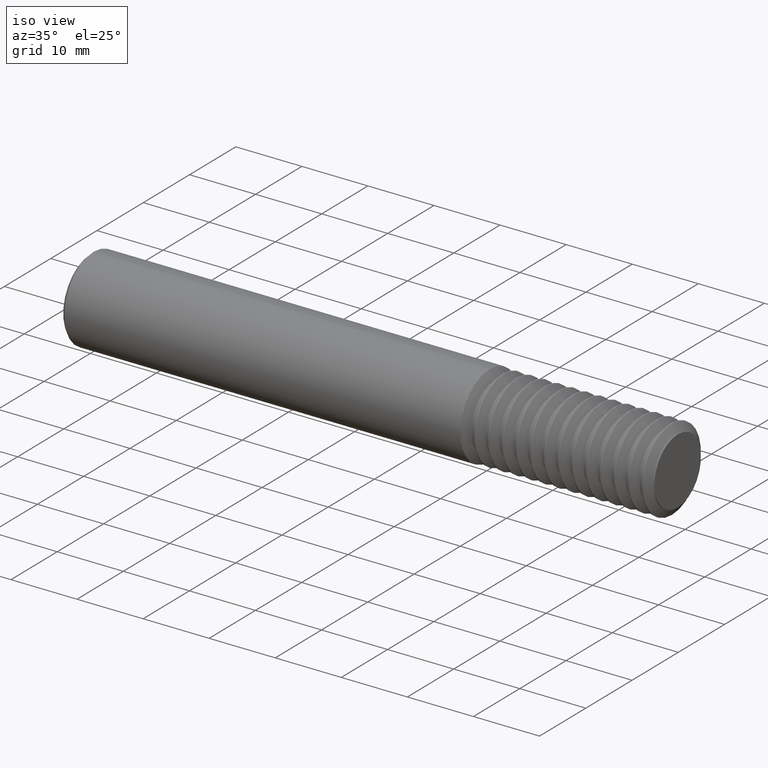
[diagram: clean part render]
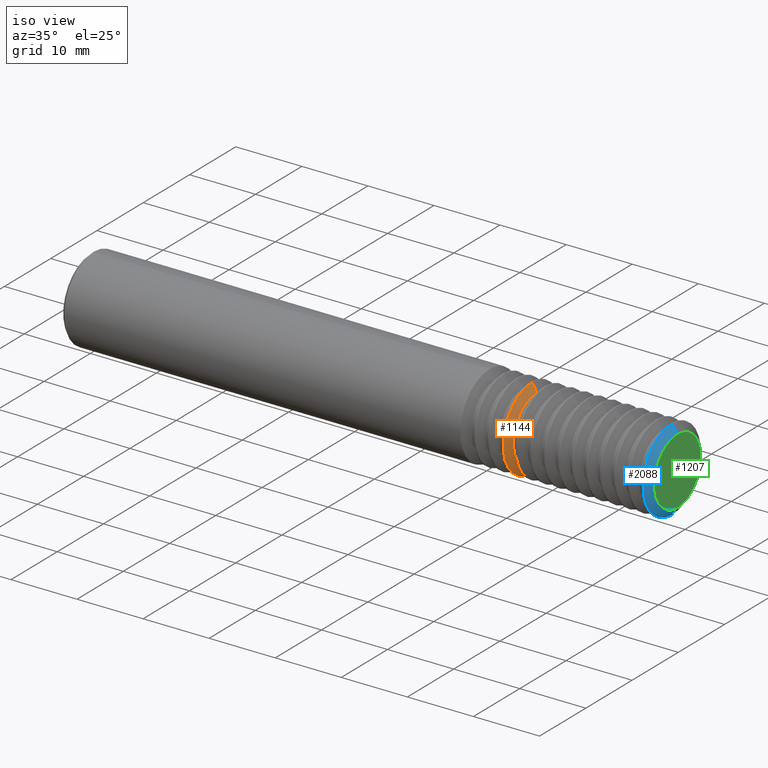
[diagram: same view with three faces highlighted in distinct colors, each labeled with its STEP entity id]
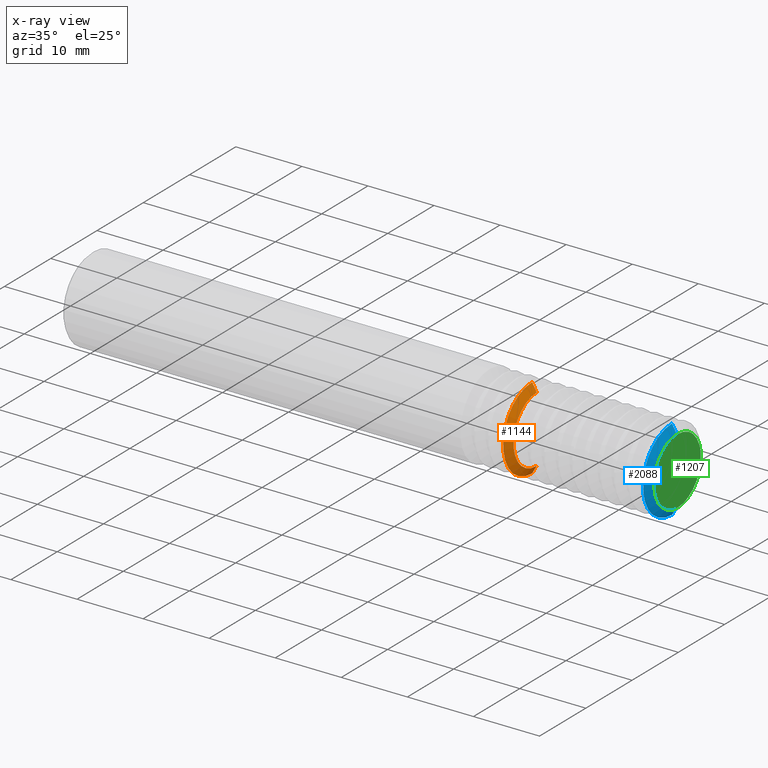
[diagram: x-ray of the same camera — body ghosted, the three highlighted faces saturated]
A machine part, iso view with three faces highlighted in distinct colors.
The next image is the same camera in x-ray (body ghosted, the three faces saturated) — at least one of them is partly hidden behind the body in this view.
Their STEP definitions:

[orange] entity #1144 — the highlighted conical surface has half-angle 60.2 deg.
#127 = CARTESIAN_POINT ( 'NONE',  ( 2.659833333333332384, 2.717894686365593704E-17, -0.1978658865981437198 ) ) ;
#288 = ORIENTED_EDGE ( 'NONE', *, *, #2534, .T. ) ;
#402 = ORIENTED_EDGE ( 'NONE', *, *, #2680, .F. ) ;
#555 = VERTEX_POINT ( 'NONE', #2595 ) ;
#576 = CARTESIAN_POINT ( 'NONE',  ( 2.632266666666666310, 0.000000000000000000, 0.000000000000000000 ) ) ;
#734 = VERTEX_POINT ( 'NONE', #2687 ) ;
#745 = ORIENTED_EDGE ( 'NONE', *, *, #1195, .T. ) ;
#1144 = ADVANCED_FACE ( 'NONE', ( #1503 ), #1455, .T. ) ;
#1187 = DIRECTION ( 'NONE',  ( -1.000000000000000000, -0.000000000000000000, -0.000000000000000000 ) ) ;
#1195 = EDGE_CURVE ( 'NONE', #555, #2588, #1818, .T. ) ;
#1234 = DIRECTION ( 'NONE',  ( 1.000000000000000000, 0.000000000000000000, 0.000000000000000000 ) ) ;
#1283 = DIRECTION ( 'NONE',  ( 0.000000000000000000, 0.000000000000000000, 1.000000000000000000 ) ) ;
#1300 = VECTOR ( 'NONE', #2517, 39.37007874015748143 ) ;
#1384 = VERTEX_POINT ( 'NONE', #127 ) ;
#1420 = EDGE_LOOP ( 'NONE', ( #402, #1889, #745, #288 ) ) ;
#1436 = AXIS2_PLACEMENT_3D ( 'NONE', #1631, #1187, #2533 ) ;
#1455 = CONICAL_SURFACE ( 'NONE', #2410, 0.2659999999999999587, 1.050688209700590070 ) ;
#1503 = FACE_OUTER_BOUND ( 'NONE', #1420, .T. ) ;
#1592 = CARTESIAN_POINT ( 'NONE',  ( 2.620812558667825254, 0.000000000000000000, 0.2659999999999999587 ) ) ;
#1631 = CARTESIAN_POINT ( 'NONE',  ( 2.659833333333332384, 0.000000000000000000, 0.000000000000000000 ) ) ;
#1777 = CARTESIAN_POINT ( 'NONE',  ( 2.620812558667825254, 0.000000000000000000, 0.000000000000000000 ) ) ;
#1818 = LINE ( 'NONE', #1592, #2880 ) ;
#1839 = CARTESIAN_POINT ( 'NONE',  ( 2.620812558667825254, 3.257560485731959097E-17, -0.2659999999999999587 ) ) ;
#1889 = ORIENTED_EDGE ( 'NONE', *, *, #2782, .T. ) ;
#1959 = AXIS2_PLACEMENT_3D ( 'NONE', #576, #1234, #2126 ) ;
#2058 = LINE ( 'NONE', #1839, #1300 ) ;
#2126 = DIRECTION ( 'NONE',  ( 0.000000000000000000, 0.000000000000000000, 1.000000000000000000 ) ) ;
#2273 = DIRECTION ( 'NONE',  ( -0.4969739610275520914, 0.000000000000000000, 0.8677654533689302951 ) ) ;
#2410 = AXIS2_PLACEMENT_3D ( 'NONE', #1777, #2423, #1283 ) ;
#2423 = DIRECTION ( 'NONE',  ( -1.000000000000000000, -0.000000000000000000, -0.000000000000000000 ) ) ;
#2438 = CIRCLE ( 'NONE', #1959, 0.2459999999999999964 ) ;
#2449 = CARTESIAN_POINT ( 'NONE',  ( 2.632266666666666310, 0.000000000000000000, 0.2459999999999999964 ) ) ;
#2517 = DIRECTION ( 'NONE',  ( -0.4969739610275520914, 1.062706184878912255E-16, -0.8677654533689302951 ) ) ;
#2533 = DIRECTION ( 'NONE',  ( 0.000000000000000000, 0.000000000000000000, 1.000000000000000000 ) ) ;
#2534 = EDGE_CURVE ( 'NONE', #2588, #734, #2438, .T. ) ;
#2588 = VERTEX_POINT ( 'NONE', #2449 ) ;
#2595 = CARTESIAN_POINT ( 'NONE',  ( 2.659833333333332384, 0.000000000000000000, 0.1978658865981437198 ) ) ;
#2677 = CIRCLE ( 'NONE', #1436, 0.1978658865981437198 ) ;
#2680 = EDGE_CURVE ( 'NONE', #1384, #734, #2058, .T. ) ;
#2687 = CARTESIAN_POINT ( 'NONE',  ( 2.632266666666666310, 3.012631125902488382E-17, -0.2459999999999999964 ) ) ;
#2782 = EDGE_CURVE ( 'NONE', #1384, #555, #2677, .T. ) ;
#2880 = VECTOR ( 'NONE', #2273, 39.37007874015748143 ) ;

[blue] entity #2088 — the highlighted conical surface has half-angle 60.2 deg.
#45 = CARTESIAN_POINT ( 'NONE',  ( 3.454145892001158291, 3.257560485731959097E-17, -0.2659999999999999587 ) ) ;
#256 = CARTESIAN_POINT ( 'NONE',  ( 3.465599999999999792, 0.000000000000000000, 0.000000000000000000 ) ) ;
#305 = VECTOR ( 'NONE', #945, 39.37007874015748143 ) ;
#314 = CARTESIAN_POINT ( 'NONE',  ( 3.465599999999999792, 0.000000000000000000, 0.2459999999999997189 ) ) ;
#636 = CARTESIAN_POINT ( 'NONE',  ( 3.493166666666665865, 2.423158246828699027E-17, -0.1978658865981437198 ) ) ;
#685 = ORIENTED_EDGE ( 'NONE', *, *, #2364, .T. ) ;
#721 = CARTESIAN_POINT ( 'NONE',  ( 3.454145892001158291, 0.000000000000000000, 0.000000000000000000 ) ) ;
#737 = DIRECTION ( 'NONE',  ( -1.000000000000000000, -0.000000000000000000, -0.000000000000000000 ) ) ;
#825 = AXIS2_PLACEMENT_3D ( 'NONE', #256, #2737, #2072 ) ;
#896 = DIRECTION ( 'NONE',  ( -1.000000000000000000, -0.000000000000000000, -0.000000000000000000 ) ) ;
#923 = CARTESIAN_POINT ( 'NONE',  ( 3.454145892001158291, 0.000000000000000000, 0.2659999999999999587 ) ) ;
#945 = DIRECTION ( 'NONE',  ( -0.4969739610275520914, 1.062706184878912255E-16, -0.8677654533689302951 ) ) ;
#949 = DIRECTION ( 'NONE',  ( -0.4969739610275520914, 0.000000000000000000, 0.8677654533689302951 ) ) ;
#1108 = CONICAL_SURFACE ( 'NONE', #2428, 0.2659999999999999587, 1.050688209700590070 ) ;
#1203 = ORIENTED_EDGE ( 'NONE', *, *, #1318, .T. ) ;
#1252 = ORIENTED_EDGE ( 'NONE', *, *, #2728, .F. ) ;
#1318 = EDGE_CURVE ( 'NONE', #2032, #1554, #2925, .T. ) ;
#1554 = VERTEX_POINT ( 'NONE', #1986 ) ;
#1620 = LINE ( 'NONE', #923, #2324 ) ;
#1708 = EDGE_LOOP ( 'NONE', ( #1252, #1203, #685, #2396 ) ) ;
#1986 = CARTESIAN_POINT ( 'NONE',  ( 3.493166666666665865, 0.000000000000000000, 0.1978658865981437198 ) ) ;
#2032 = VERTEX_POINT ( 'NONE', #636 ) ;
#2042 = LINE ( 'NONE', #45, #305 ) ;
#2072 = DIRECTION ( 'NONE',  ( 0.000000000000000000, 0.000000000000000000, 1.000000000000000000 ) ) ;
#2088 = ADVANCED_FACE ( 'NONE', ( #2747 ), #1108, .T. ) ;
#2227 = VERTEX_POINT ( 'NONE', #314 ) ;
#2245 = CARTESIAN_POINT ( 'NONE',  ( 3.493166666666665865, 0.000000000000000000, 0.000000000000000000 ) ) ;
#2324 = VECTOR ( 'NONE', #949, 39.37007874015748143 ) ;
#2364 = EDGE_CURVE ( 'NONE', #1554, #2227, #1620, .T. ) ;
#2396 = ORIENTED_EDGE ( 'NONE', *, *, #2709, .T. ) ;
#2428 = AXIS2_PLACEMENT_3D ( 'NONE', #721, #737, #2721 ) ;
#2482 = CIRCLE ( 'NONE', #825, 0.2459999999999999964 ) ;
#2558 = CARTESIAN_POINT ( 'NONE',  ( 3.465599999999999792, 3.012631125902485300E-17, -0.2459999999999997189 ) ) ;
#2702 = DIRECTION ( 'NONE',  ( 0.000000000000000000, 0.000000000000000000, 1.000000000000000000 ) ) ;
#2709 = EDGE_CURVE ( 'NONE', #2227, #2911, #2482, .T. ) ;
#2721 = DIRECTION ( 'NONE',  ( 0.000000000000000000, 0.000000000000000000, 1.000000000000000000 ) ) ;
#2728 = EDGE_CURVE ( 'NONE', #2032, #2911, #2042, .T. ) ;
#2737 = DIRECTION ( 'NONE',  ( 1.000000000000000000, 0.000000000000000000, 0.000000000000000000 ) ) ;
#2747 = FACE_OUTER_BOUND ( 'NONE', #1708, .T. ) ;
#2825 = AXIS2_PLACEMENT_3D ( 'NONE', #2245, #896, #2702 ) ;
#2911 = VERTEX_POINT ( 'NONE', #2558 ) ;
#2925 = CIRCLE ( 'NONE', #2825, 0.1978658865981437198 ) ;

[green] entity #1207 — the highlighted planar face has unit normal (-1, 0, -0).
#38 = EDGE_CURVE ( 'NONE', #1573, #242, #2421, .T. ) ;
#42 = AXIS2_PLACEMENT_3D ( 'NONE', #2064, #2035, #703 ) ;
#242 = VERTEX_POINT ( 'NONE', #857 ) ;
#246 = PLANE ( 'NONE',  #42 ) ;
#490 = CARTESIAN_POINT ( 'NONE',  ( 3.500000000000000000, 0.000000000000000000, 0.000000000000000000 ) ) ;
#526 = CARTESIAN_POINT ( 'NONE',  ( 3.500000000000000000, 0.000000000000000000, 0.000000000000000000 ) ) ;
#703 = DIRECTION ( 'NONE',  ( -0.000000000000000000, 0.000000000000000000, 1.000000000000000000 ) ) ;
#726 = DIRECTION ( 'NONE',  ( -1.000000000000000000, -0.000000000000000000, -0.000000000000000000 ) ) ;
#812 = DIRECTION ( 'NONE',  ( -1.000000000000000000, -0.000000000000000000, -0.000000000000000000 ) ) ;
#857 = CARTESIAN_POINT ( 'NONE',  ( 3.500000000000000000, 0.000000000000000000, 0.1978658865981437198 ) ) ;
#869 = AXIS2_PLACEMENT_3D ( 'NONE', #490, #726, #1391 ) ;
#943 = ORIENTED_EDGE ( 'NONE', *, *, #2873, .F. ) ;
#1091 = AXIS2_PLACEMENT_3D ( 'NONE', #526, #812, #2155 ) ;
#1207 = ADVANCED_FACE ( 'NONE', ( #1562 ), #246, .F. ) ;
#1391 = DIRECTION ( 'NONE',  ( 0.000000000000000000, 0.000000000000000000, 1.000000000000000000 ) ) ;
#1465 = CIRCLE ( 'NONE', #1091, 0.1978658865981437198 ) ;
#1525 = ORIENTED_EDGE ( 'NONE', *, *, #38, .F. ) ;
#1562 = FACE_OUTER_BOUND ( 'NONE', #2909, .T. ) ;
#1573 = VERTEX_POINT ( 'NONE', #1797 ) ;
#1797 = CARTESIAN_POINT ( 'NONE',  ( 3.500000000000000000, 2.423158246828699027E-17, -0.1978658865981437198 ) ) ;
#2035 = DIRECTION ( 'NONE',  ( -1.000000000000000000, 0.000000000000000000, -0.000000000000000000 ) ) ;
#2064 = CARTESIAN_POINT ( 'NONE',  ( 3.500000000000000000, 0.2459999999999999964, 0.000000000000000000 ) ) ;
#2155 = DIRECTION ( 'NONE',  ( 0.000000000000000000, 0.000000000000000000, 1.000000000000000000 ) ) ;
#2421 = CIRCLE ( 'NONE', #869, 0.1978658865981437198 ) ;
#2873 = EDGE_CURVE ( 'NONE', #242, #1573, #1465, .T. ) ;
#2909 = EDGE_LOOP ( 'NONE', ( #943, #1525 ) ) ;